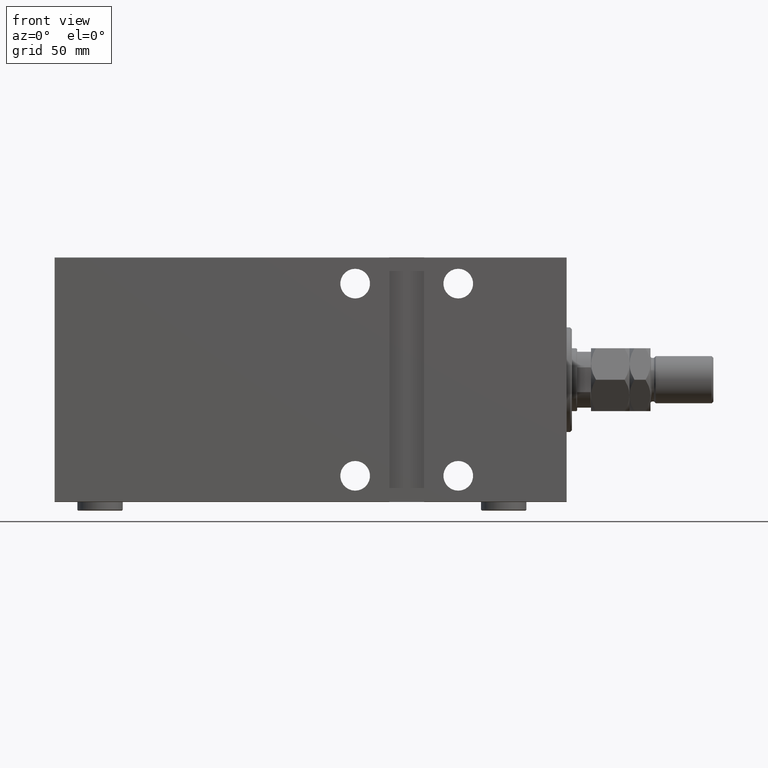
[diagram: clean part render]
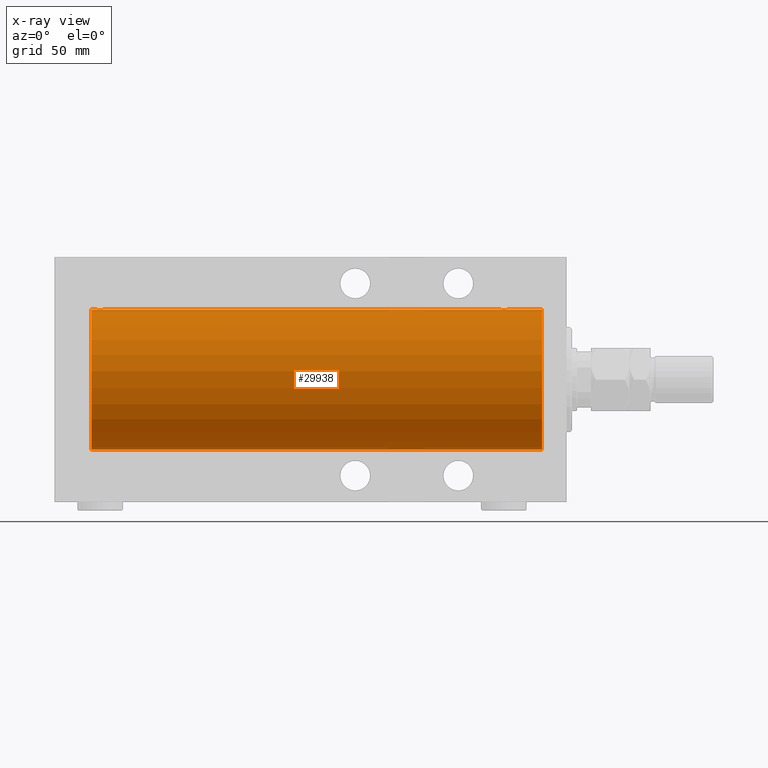
[diagram: x-ray — body ghosted, one internal face saturated and labeled with its STEP entity id]
A machine part, front view, then the same camera in x-ray: the body is ghosted and one INTERNAL B-rep face — a face not visible from any outside direction — is saturated and labeled: STEP entity #29938.
In plain terms, the highlighted cylindrical surface (partial cylindrical patch) has radius 40 mm, axis along (1, 0, -0).
Its self-contained STEP definition (entity closure, byte-faithful):
#179 = CARTESIAN_POINT ( 'NONE',  ( 38.69591204181047317, 1.330687358699879974, 39.97827280031935970 ) ) ;
#181 = CARTESIAN_POINT ( 'NONE',  ( 272.0000000000000000, 0.000000000000000000, 40.00000000000000000 ) ) ;
#397 = CARTESIAN_POINT ( 'NONE',  ( 37.98255211990296942, 2.260036752248978598, 39.93634209860680073 ) ) ;
#1320 = VERTEX_POINT ( 'NONE', #181 ) ;
#1376 = CARTESIAN_POINT ( 'NONE',  ( 266.0346170223974696, 2.847223932150706460, 39.89860891179019120 ) ) ;
#1537 = CARTESIAN_POINT ( 'NONE',  ( 35.80533038627242348, 3.000070108558754889, 39.88733607736547526 ) ) ;
#1604 = CARTESIAN_POINT ( 'NONE',  ( 265.1706818041052998, 2.385749008316979225, 39.92893738690724348 ) ) ;
#1758 = CARTESIAN_POINT ( 'NONE',  ( 33.01962587690334772, 0.3947312521144672459, 39.99851454786935534 ) ) ;
#1828 = CARTESIAN_POINT ( 'NONE',  ( 266.2216664113801698, 2.903909245874806366, 39.89447063612583122 ) ) ;
#2111 = CARTESIAN_POINT ( 'NONE',  ( 272.0000000000000000, 4.898587196589413026E-15, -40.00000000000000000 ) ) ;
#2169 = EDGE_CURVE ( 'NONE', #45667, #10236, #28611, .T. ) ;
#2382 = EDGE_CURVE ( 'NONE', #1320, #5108, #13626, .T. ) ;
#2969 = AXIS2_PLACEMENT_3D ( 'NONE', #27584, #16627, #9864 ) ;
#3078 = VERTEX_POINT ( 'NONE', #27260 ) ;
#3256 = DIRECTION ( 'NONE',  ( -1.000000000000000000, -0.000000000000000000, -0.000000000000000000 ) ) ;
#4168 = CARTESIAN_POINT ( 'NONE',  ( 269.9805336956897577, 0.3932559001416486844, 39.99852666141217128 ) ) ;
#4212 = VECTOR ( 'NONE', #12560, 1000.000000000000000 ) ;
#4398 = CARTESIAN_POINT ( 'NONE',  ( 270.0000000000000000, 0.1982918730505195404, 40.00000000000000000 ) ) ;
#4560 = CARTESIAN_POINT ( 'NONE',  ( 34.67130743887658184, 2.696891635062807602, 39.90905226542625428 ) ) ;
#5085 = CARTESIAN_POINT ( 'NONE',  ( 264.0196258769034330, 0.3947312521144604180, 39.99851454786936245 ) ) ;
#5108 = VERTEX_POINT ( 'NONE', #42683 ) ;
#5540 = CARTESIAN_POINT ( 'NONE',  ( 264.7390160613683179, 1.981711254113866394, 39.95112616827062624 ) ) ;
#6053 = CARTESIAN_POINT ( 'NONE',  ( 32.99999999999999289, -1.483413489222851649E-23, 40.00000000000000000 ) ) ;
#6406 = CARTESIAN_POINT ( 'NONE',  ( 272.0000000000000000, 0.000000000000000000, 40.00000000000000000 ) ) ;
#6708 = CARTESIAN_POINT ( 'NONE',  ( 39.00000000000000000, 1.790049141998953147E-15, 40.00000000000000000 ) ) ;
#7130 = CARTESIAN_POINT ( 'NONE',  ( 38.84654924566736867, 0.9673820216299559016, 39.98871336974454493 ) ) ;
#7132 = B_SPLINE_CURVE_WITH_KNOTS ( 'NONE', 3,
 ( #17612, #42513, #10613, #24830, #7130, #179, #28551, #39258, #18067, #397, #30154, #11989, #15936, #33645, #8494, #44093, #22936, #1537, #33414, #8049, #29465, #4560, #11524, #15720, #36223, #43642, #11759, #18977, #29927, #40165, #25971, #1758, #37127, #43875 ),
 .UNSPECIFIED., .F., .F.,
 ( 4, 2, 2, 2, 2, 2, 2, 2, 2, 2, 2, 2, 2, 2, 2, 2, 4 ),
 ( 2.885910519915960730E-18, 0.0005864162728940724425, 0.001172832545788141849, 0.001759248818682211364, 0.002345665091576281096, 0.002932081364470350612, 0.003518497637364420127, 0.004104913910258489208, 0.004691330183152558723, 0.005277746456046628239, 0.005864162728940697754, 0.006450579001834767269, 0.007036995274728836784, 0.007623411547622906299, 0.008209827820516976682, 0.008796244093411046197, 0.009382660366305115712 ),
 .UNSPECIFIED. ) ;
#7703 = FACE_OUTER_BOUND ( 'NONE', #41146, .T. ) ;
#8049 = CARTESIAN_POINT ( 'NONE',  ( 35.22166641138022669, 2.903909245874802370, 39.89447063612582411 ) ) ;
#8057 = AXIS2_PLACEMENT_3D ( 'NONE', #35194, #45889, #35884 ) ;
#8118 = CARTESIAN_POINT ( 'NONE',  ( 269.2592951265791044, 1.983397227149376496, 39.95103655448513535 ) ) ;
#8494 = CARTESIAN_POINT ( 'NONE',  ( 36.77886631885524338, 2.903851887155397993, 39.89447500423337800 ) ) ;
#8757 = ORIENTED_EDGE ( 'NONE', *, *, #14382, .T. ) ;
#9864 = DIRECTION ( 'NONE',  ( 0.000000000000000000, 0.000000000000000000, 1.000000000000000000 ) ) ;
#10107 = VERTEX_POINT ( 'NONE', #22193 ) ;
#10236 = VERTEX_POINT ( 'NONE', #22335 ) ;
#10613 = CARTESIAN_POINT ( 'NONE',  ( 38.98053369568978610, 0.3932559001416446320, 39.99852666141217838 ) ) ;
#11524 = CARTESIAN_POINT ( 'NONE',  ( 34.49570643139941950, 2.602941461497649378, 39.91536715259250911 ) ) ;
#11759 = CARTESIAN_POINT ( 'NONE',  ( 33.61483062030600166, 1.830069308885371449, 39.95844440547435283 ) ) ;
#11989 = CARTESIAN_POINT ( 'NONE',  ( 37.50356430083395054, 2.603499486649427652, 39.91533365697402758 ) ) ;
#12560 = DIRECTION ( 'NONE',  ( -1.000000000000000000, -0.000000000000000000, -0.000000000000000000 ) ) ;
#12567 = VECTOR ( 'NONE', #21501, 1000.000000000000000 ) ;
#12754 = CARTESIAN_POINT ( 'NONE',  ( 267.1968244977693416, 2.999929504480794318, 39.88734665245503663 ) ) ;
#13203 = DIRECTION ( 'NONE',  ( -1.000000000000000000, 0.000000000000000000, 0.000000000000000000 ) ) ;
#13626 = LINE ( 'NONE', #6406, #45776 ) ;
#13919 = B_SPLINE_CURVE_WITH_KNOTS ( 'NONE', 3,
 ( #36059, #4398, #4168, #18605, #26268, #37425, #40457, #19516, #8118, #19055, #40687, #19748, #43941, #44637, #36520, #33258, #12754, #33023, #30460, #1828, #1376, #40002, #16010, #1604, #15555, #5540, #33941, #30229, #15788, #16247, #44165, #5085, #22319, #40923 ),
 .UNSPECIFIED., .F., .F.,
 ( 4, 2, 2, 2, 2, 2, 2, 2, 2, 2, 2, 2, 2, 2, 2, 2, 4 ),
 ( 5.306108930492921817E-18, 0.0005864162728940714667, 0.001172832545788137512, 0.001759248818682203775, 0.002345665091576270254, 0.002932081364470337168, 0.003518497637364402780, 0.004104913910258469259, 0.004691330183152535305, 0.005277746456046601350, 0.005864162728940667396, 0.006450579001834734309, 0.007036995274728799488, 0.007623411547622865533, 0.008209827820516931579, 0.008796244093410997625, 0.009382660366305065405 ),
 .UNSPECIFIED. ) ;
#14382 = EDGE_CURVE ( 'NONE', #32582, #43256, #31993, .T. ) ;
#14680 = ORIENTED_EDGE ( 'NONE', *, *, #15224, .F. ) ;
#15224 = EDGE_CURVE ( 'NONE', #1320, #10107, #26740, .T. ) ;
#15555 = CARTESIAN_POINT ( 'NONE',  ( 265.0191701439611052, 2.261756164323878604, 39.93625070860935722 ) ) ;
#15720 = CARTESIAN_POINT ( 'NONE',  ( 34.17068180410537082, 2.385749008316983222, 39.92893738690724348 ) ) ;
#15788 = CARTESIAN_POINT ( 'NONE',  ( 264.3036467693046916, 1.329803094607250991, 39.97830262548651348 ) ) ;
#15936 = CARTESIAN_POINT ( 'NONE',  ( 37.32902305536724441, 2.696641662727008004, 39.90906847305313221 ) ) ;
#16010 = CARTESIAN_POINT ( 'NONE',  ( 265.4957064313993556, 2.602941461497645381, 39.91536715259250911 ) ) ;
#16247 = CARTESIAN_POINT ( 'NONE',  ( 264.1530856663910072, 0.9663207501651985831, 39.98873943115997776 ) ) ;
#16627 = DIRECTION ( 'NONE',  ( -1.000000000000000000, 0.000000000000000000, 0.000000000000000000 ) ) ;
#16838 = CIRCLE ( 'NONE', #23555, 40.00000000000000000 ) ;
#17612 = CARTESIAN_POINT ( 'NONE',  ( 39.00000000000000000, 1.790049141998953147E-15, 40.00000000000000000 ) ) ;
#18067 = CARTESIAN_POINT ( 'NONE',  ( 38.25929512657906884, 1.983397227149401809, 39.95103655448512825 ) ) ;
#18605 = CARTESIAN_POINT ( 'NONE',  ( 269.9042737118542732, 0.7768046863726137952, 39.99291636985139320 ) ) ;
#18977 = CARTESIAN_POINT ( 'NONE',  ( 33.39757861902342029, 1.505187563391998440, 39.97200074276641857 ) ) ;
#19055 = CARTESIAN_POINT ( 'NONE',  ( 268.9825521199029481, 2.260036752248951952, 39.93634209860680073 ) ) ;
#19516 = CARTESIAN_POINT ( 'NONE',  ( 269.3859910274742901, 1.829066045078045599, 39.95849278436325136 ) ) ;
#19748 = CARTESIAN_POINT ( 'NONE',  ( 268.5035643008340003, 2.603499486649412997, 39.91533365697404889 ) ) ;
#20490 = LINE ( 'NONE', #2111, #4212 ) ;
#21501 = DIRECTION ( 'NONE',  ( -1.000000000000000000, -0.000000000000000000, -0.000000000000000000 ) ) ;
#22193 = CARTESIAN_POINT ( 'NONE',  ( 272.0000000000000000, 4.898587196589413026E-15, -40.00000000000000000 ) ) ;
#22319 = CARTESIAN_POINT ( 'NONE',  ( 264.0000000000000568, 0.1958295874890017829, 40.00000000000002132 ) ) ;
#22335 = CARTESIAN_POINT ( 'NONE',  ( 14.00000000000001243, 0.000000000000000000, 40.00000000000000000 ) ) ;
#22936 = CARTESIAN_POINT ( 'NONE',  ( 36.19682449776940558, 2.999929504480798759, 39.88734665245503663 ) ) ;
#23236 = ORIENTED_EDGE ( 'NONE', *, *, #34086, .T. ) ;
#23555 = AXIS2_PLACEMENT_3D ( 'NONE', #41598, #13203, #41362 ) ;
#24333 = DIRECTION ( 'NONE',  ( -1.000000000000000000, -0.000000000000000000, -0.000000000000000000 ) ) ;
#24436 = EDGE_CURVE ( 'NONE', #10236, #3078, #16838, .T. ) ;
#24439 = CARTESIAN_POINT ( 'NONE',  ( 272.0000000000000000, 0.000000000000000000, 40.00000000000000000 ) ) ;
#24830 = CARTESIAN_POINT ( 'NONE',  ( 38.90427371185430161, 0.7768046863726117968, 39.99291636985138609 ) ) ;
#25277 = EDGE_CURVE ( 'NONE', #10107, #3078, #20490, .T. ) ;
#25971 = CARTESIAN_POINT ( 'NONE',  ( 33.09635504612251111, 0.7792872749133284982, 39.99287049138470707 ) ) ;
#26268 = CARTESIAN_POINT ( 'NONE',  ( 269.8465492456674042, 0.9673820216299393593, 39.98871336974455204 ) ) ;
#26740 = CIRCLE ( 'NONE', #2969, 40.00000000000000000 ) ;
#27260 = CARTESIAN_POINT ( 'NONE',  ( 14.00000000000001243, 4.898587196589413026E-15, -40.00000000000000000 ) ) ;
#27584 = CARTESIAN_POINT ( 'NONE',  ( 272.0000000000000000, 0.000000000000000000, 0.000000000000000000 ) ) ;
#28551 = CARTESIAN_POINT ( 'NONE',  ( 38.60374115178256460, 1.502986292339233421, 39.97208601512195258 ) ) ;
#28596 = ORIENTED_EDGE ( 'NONE', *, *, #2169, .T. ) ;
#28611 = LINE ( 'NONE', #24439, #37607 ) ;
#28985 = CARTESIAN_POINT ( 'NONE',  ( 263.9999999999999432, -1.484439008399638965E-23, 40.00000000000000000 ) ) ;
#29465 = CARTESIAN_POINT ( 'NONE',  ( 35.03461702239748377, 2.847223932150714898, 39.89860891179019120 ) ) ;
#29927 = CARTESIAN_POINT ( 'NONE',  ( 33.30364676930471290, 1.329803094607260094, 39.97830262548650637 ) ) ;
#29938 = ADVANCED_FACE ( 'NONE', ( #7703 ), #42620, .F. ) ;
#30154 = CARTESIAN_POINT ( 'NONE',  ( 37.83153733550744136, 2.384195078505197074, 39.92903310064217948 ) ) ;
#30229 = CARTESIAN_POINT ( 'NONE',  ( 264.3975786190234203, 1.505187563391999994, 39.97200074276641146 ) ) ;
#30460 = CARTESIAN_POINT ( 'NONE',  ( 266.6064979360704683, 2.980544951704989565, 39.88881833341081062 ) ) ;
#31953 = ORIENTED_EDGE ( 'NONE', *, *, #25277, .F. ) ;
#31993 = LINE ( 'NONE', #39191, #12567 ) ;
#32582 = VERTEX_POINT ( 'NONE', #28985 ) ;
#33023 = CARTESIAN_POINT ( 'NONE',  ( 266.8053303862724874, 3.000070108558746895, 39.88733607736548237 ) ) ;
#33258 = CARTESIAN_POINT ( 'NONE',  ( 267.3915424209009757, 2.980886287300807957, 39.88879301994634119 ) ) ;
#33414 = CARTESIAN_POINT ( 'NONE',  ( 35.60649793607048963, 2.980544951704990453, 39.88881833341080352 ) ) ;
#33645 = CARTESIAN_POINT ( 'NONE',  ( 36.96800844763285454, 2.846249845702967907, 39.89867772821342129 ) ) ;
#33941 = CARTESIAN_POINT ( 'NONE',  ( 264.6148306203060088, 1.830069308885371226, 39.95844440547435994 ) ) ;
#33994 = ORIENTED_EDGE ( 'NONE', *, *, #45197, .T. ) ;
#34086 = EDGE_CURVE ( 'NONE', #5108, #32582, #13919, .T. ) ;
#35194 = CARTESIAN_POINT ( 'NONE',  ( 272.0000000000000000, 0.000000000000000000, 0.000000000000000000 ) ) ;
#35884 = DIRECTION ( 'NONE',  ( 0.000000000000000000, 0.000000000000000000, 1.000000000000000000 ) ) ;
#36059 = CARTESIAN_POINT ( 'NONE',  ( 269.9999999999999432, 5.460299623278921719E-15, 40.00000000000000000 ) ) ;
#36223 = CARTESIAN_POINT ( 'NONE',  ( 34.01917014396114070, 2.261756164323883933, 39.93625070860936432 ) ) ;
#36520 = CARTESIAN_POINT ( 'NONE',  ( 267.7788663188553073, 2.903851887155388667, 39.89447500423338511 ) ) ;
#37127 = CARTESIAN_POINT ( 'NONE',  ( 32.99999999999998579, 0.1958295874890017552, 39.99999999999998579 ) ) ;
#37165 = ORIENTED_EDGE ( 'NONE', *, *, #2382, .T. ) ;
#37425 = CARTESIAN_POINT ( 'NONE',  ( 269.6959120418104590, 1.330687358699860878, 39.97827280031937391 ) ) ;
#37607 = VECTOR ( 'NONE', #3256, 1000.000000000000000 ) ;
#39191 = CARTESIAN_POINT ( 'NONE',  ( 272.0000000000000000, 0.000000000000000000, 40.00000000000000000 ) ) ;
#39237 = ORIENTED_EDGE ( 'NONE', *, *, #24436, .T. ) ;
#39258 = CARTESIAN_POINT ( 'NONE',  ( 38.38599102747435410, 1.829066045078052039, 39.95849278436325136 ) ) ;
#40002 = CARTESIAN_POINT ( 'NONE',  ( 265.6713074388764539, 2.696891635062798276, 39.90905226542625428 ) ) ;
#40165 = CARTESIAN_POINT ( 'NONE',  ( 33.15308566639104981, 0.9663207501652073539, 39.98873943115997065 ) ) ;
#40457 = CARTESIAN_POINT ( 'NONE',  ( 269.6037411517825717, 1.502986292339229424, 39.97208601512195969 ) ) ;
#40687 = CARTESIAN_POINT ( 'NONE',  ( 268.8315373355073348, 2.384195078505179755, 39.92903310064217237 ) ) ;
#40923 = CARTESIAN_POINT ( 'NONE',  ( 263.9999999999999432, -1.484439008399638965E-23, 40.00000000000000000 ) ) ;
#41146 = EDGE_LOOP ( 'NONE', ( #31953, #14680, #37165, #23236, #8757, #33994, #28596, #39237 ) ) ;
#41362 = DIRECTION ( 'NONE',  ( 0.000000000000000000, 0.000000000000000000, 1.000000000000000000 ) ) ;
#41598 = CARTESIAN_POINT ( 'NONE',  ( 14.00000000000001243, 0.000000000000000000, 0.000000000000000000 ) ) ;
#42513 = CARTESIAN_POINT ( 'NONE',  ( 39.00000000000000000, 0.1982918730505198457, 39.99999999999999289 ) ) ;
#42620 = CYLINDRICAL_SURFACE ( 'NONE', #8057, 40.00000000000000000 ) ;
#42683 = CARTESIAN_POINT ( 'NONE',  ( 269.9999999999999432, 5.460299623278921719E-15, 40.00000000000000000 ) ) ;
#43256 = VERTEX_POINT ( 'NONE', #6708 ) ;
#43642 = CARTESIAN_POINT ( 'NONE',  ( 33.73901606136831788, 1.981711254113870391, 39.95112616827061913 ) ) ;
#43875 = CARTESIAN_POINT ( 'NONE',  ( 32.99999999999999289, -1.483413489222851649E-23, 40.00000000000000000 ) ) ;
#43941 = CARTESIAN_POINT ( 'NONE',  ( 268.3290230553672018, 2.696641662727011113, 39.90906847305313221 ) ) ;
#44093 = CARTESIAN_POINT ( 'NONE',  ( 36.39154242090099700, 2.980886287300817283, 39.88879301994635540 ) ) ;
#44165 = CARTESIAN_POINT ( 'NONE',  ( 264.0963550461225395, 0.7792872749133210597, 39.99287049138470707 ) ) ;
#44637 = CARTESIAN_POINT ( 'NONE',  ( 267.9680084476328261, 2.846249845702969683, 39.89867772821342129 ) ) ;
#45197 = EDGE_CURVE ( 'NONE', #43256, #45667, #7132, .T. ) ;
#45667 = VERTEX_POINT ( 'NONE', #6053 ) ;
#45776 = VECTOR ( 'NONE', #24333, 1000.000000000000000 ) ;
#45889 = DIRECTION ( 'NONE',  ( -1.000000000000000000, -0.000000000000000000, -0.000000000000000000 ) ) ;